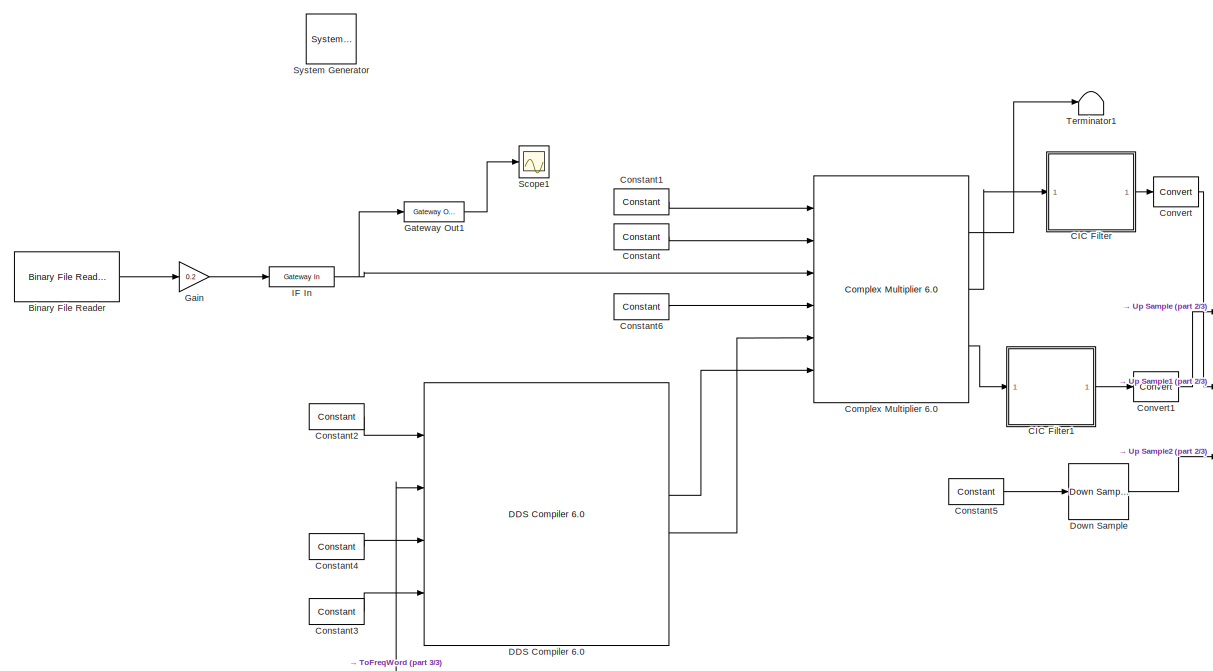
[diagram: root canvas - part 1/3, left side, full height]
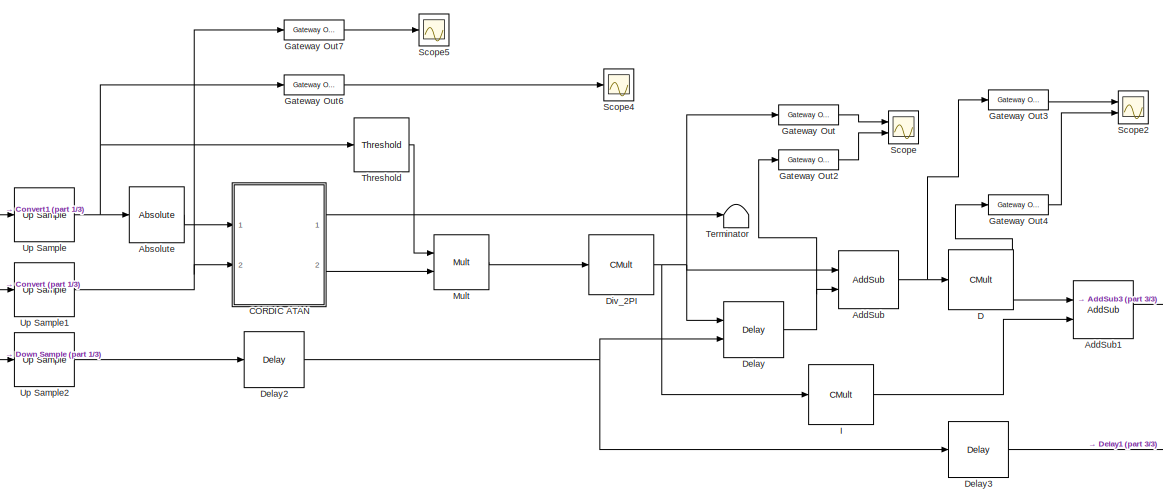
[diagram: root canvas - part 2/3, central region]
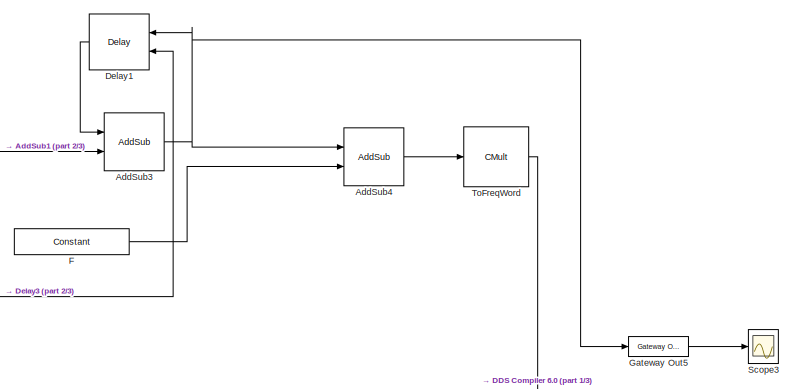
[diagram: root canvas - part 3/3, middle right region]
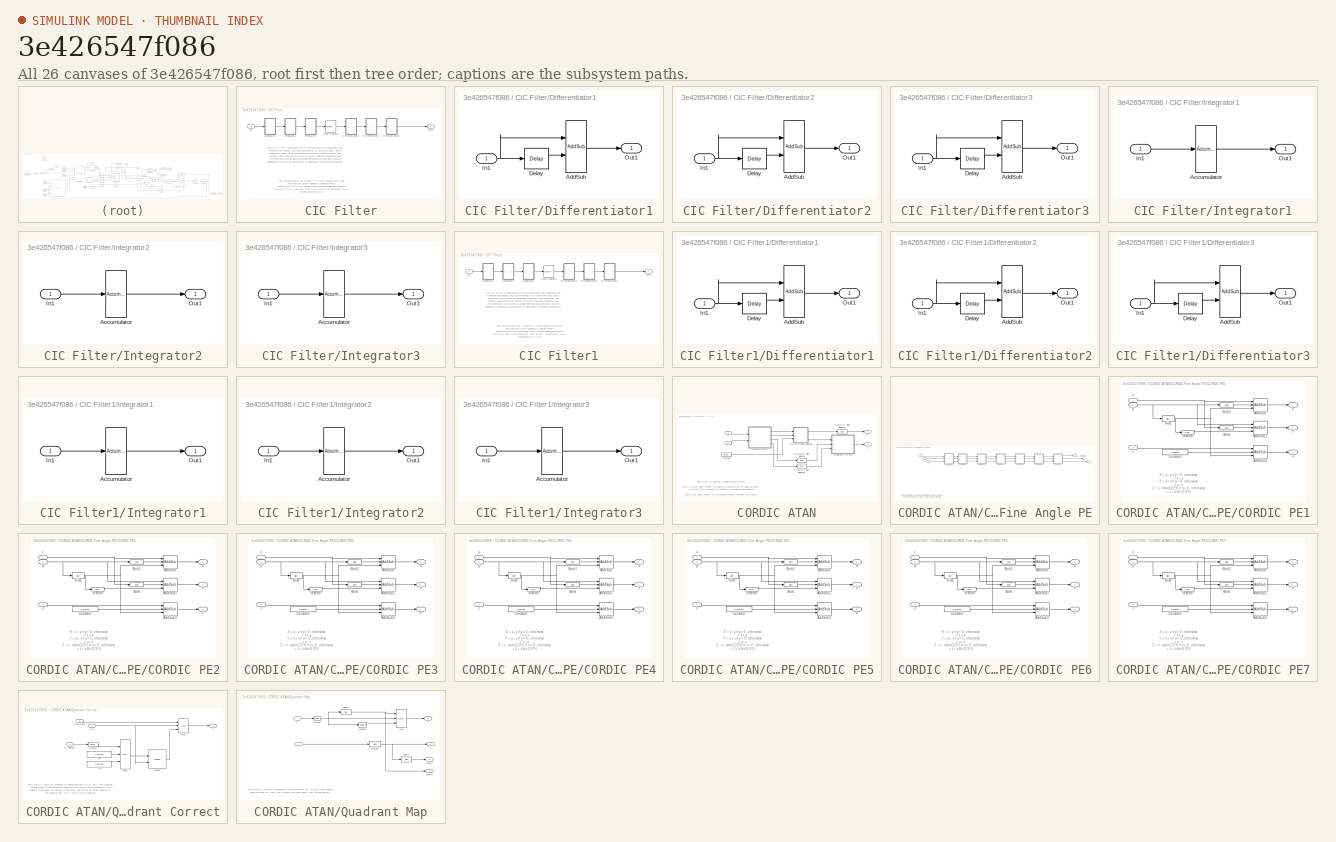
[diagram: thumbnail index - all 26 canvases of the model, root first then tree order]
MODEL slx_3e426547f086
KIND model
CONFIG AbsTol = auto
CONFIG EnableMultiTasking = off
CONFIG FixedStep = auto
CONFIG MaxStep = auto
CONFIG MinStep = auto
CONFIG RelTol = 1e-3
CONFIG SampleTimeConstraint = Unconstrained
CONFIG Solver = VariableStepAuto
CONFIG SolverName = VariableStepAuto
CONFIG StartTime = 0.0
CONFIG StopTime = 8*8e4/16367600
BLOCK [Reference]  System Generator  REF=xbsIndex_r4/ System Generator
  AttributesFormatString = System\nGenerator
  Ports = []
  SourceBlock = xbsIndex_r4/ System Generator
  SourceType = Xilinx System Generator Block
  Tag = genX
  UserDataPersistent = on
BLOCK [Reference] Absolute  REF=xbsIndex_r4/Absolute
  Ports = [1, 1]
  SourceBlock = xbsIndex_r4/Absolute
  SourceType = Xilinx Absolute Block Block
BLOCK [Reference] AddSub  REF=xbsIndex_r4/AddSub
  Ports = [2, 1]
  SourceBlock = xbsIndex_r4/AddSub
  SourceType = Xilinx Adder/Subtracter Block
BLOCK [Reference] AddSub1  REF=xbsIndex_r4/AddSub
  Ports = [2, 1]
  SourceBlock = xbsIndex_r4/AddSub
  SourceType = Xilinx Adder/Subtracter Block
BLOCK [Reference] AddSub3  REF=xbsIndex_r4/AddSub
  Ports = [2, 1]
  SourceBlock = xbsIndex_r4/AddSub
  SourceType = Xilinx Adder/Subtracter Block
BLOCK [Reference] AddSub4  REF=xbsIndex_r4/AddSub
  Ports = [2, 1]
  SourceBlock = xbsIndex_r4/AddSub
  SourceType = Xilinx Adder/Subtracter Block
BLOCK [Reference] Binary File Reader  REF=dspsrcs4/Binary File Reader
  Ports = [0, 1]
  SourceBlock = dspsrcs4/Binary File Reader
  SourceProductBaseCode = DS
  SourceProductName = DSP System Toolbox
  SourceType = dsp.simulink.BinaryFileReader
BLOCK [SubSystem] CIC Filter
  CopyFcn = set_param(gcb, 'MaskSelfModifiable', 'on', 'LinkStatus', 'none');
  Ports = [1, 1]
  RequestExecContextInheritance = off
BLOCK [SubSystem] CIC Filter/Differentiator1
  Ports = [1, 1]
  RequestExecContextInheritance = off
BLOCK [Reference] CIC Filter/Differentiator1/AddSub  REF=xbsIndex_r4/AddSub
  Ports = [2, 1]
  SourceBlock = xbsIndex_r4/AddSub
  SourceType = Xilinx Adder/Subtracter Block
BLOCK [Reference] CIC Filter/Differentiator1/Delay  REF=xbsIndex_r4/Delay
  Ports = [1, 1]
  SourceBlock = xbsIndex_r4/Delay
  SourceType = Xilinx Delay Block
BLOCK [Inport] CIC Filter/Differentiator1/In1
  IconDisplay = Port number
BLOCK [Outport] CIC Filter/Differentiator1/Out1
  IconDisplay = Port number
BLOCK [SubSystem] CIC Filter/Differentiator2
  Ports = [1, 1]
  RequestExecContextInheritance = off
BLOCK [Reference] CIC Filter/Differentiator2/AddSub  REF=xbsIndex_r4/AddSub
  Ports = [2, 1]
  SourceBlock = xbsIndex_r4/AddSub
  SourceType = Xilinx Adder/Subtracter Block
BLOCK [Reference] CIC Filter/Differentiator2/Delay  REF=xbsIndex_r4/Delay
  Ports = [1, 1]
  SourceBlock = xbsIndex_r4/Delay
  SourceType = Xilinx Delay Block
BLOCK [Inport] CIC Filter/Differentiator2/In1
  IconDisplay = Port number
BLOCK [Outport] CIC Filter/Differentiator2/Out1
  IconDisplay = Port number
BLOCK [SubSystem] CIC Filter/Differentiator3
  Ports = [1, 1]
  RequestExecContextInheritance = off
BLOCK [Reference] CIC Filter/Differentiator3/AddSub  REF=xbsIndex_r4/AddSub
  Ports = [2, 1]
  SourceBlock = xbsIndex_r4/AddSub
  SourceType = Xilinx Adder/Subtracter Block
BLOCK [Reference] CIC Filter/Differentiator3/Delay  REF=xbsIndex_r4/Delay
  Ports = [1, 1]
  SourceBlock = xbsIndex_r4/Delay
  SourceType = Xilinx Delay Block
BLOCK [Inport] CIC Filter/Differentiator3/In1
  IconDisplay = Port number
BLOCK [Outport] CIC Filter/Differentiator3/Out1
  IconDisplay = Port number
BLOCK [Reference] CIC Filter/Down Sample  REF=xbsIndex_r4/Down Sample
  Ports = [1, 1]
  SourceBlock = xbsIndex_r4/Down Sample
  SourceType = Xilinx Down Sampler Block
BLOCK [Inport] CIC Filter/In1
  IconDisplay = Port number
BLOCK [SubSystem] CIC Filter/Integrator1
  CopyFcn = set_param(gcb, 'LinkStatus', 'none');
  Ports = [1, 1]
  RequestExecContextInheritance = off
BLOCK [Reference] CIC Filter/Integrator1/Accumulator  REF=xbsIndex_r4/Accumulator
  Ports = [1, 1]
  SourceBlock = xbsIndex_r4/Accumulator
  SourceType = Xilinx Accumulator Block
BLOCK [Inport] CIC Filter/Integrator1/In1
  IconDisplay = Port number
BLOCK [Outport] CIC Filter/Integrator1/Out1
  IconDisplay = Port number
BLOCK [SubSystem] CIC Filter/Integrator2
  CopyFcn = set_param(gcb, 'LinkStatus', 'none');
  Ports = [1, 1]
  RequestExecContextInheritance = off
BLOCK [Reference] CIC Filter/Integrator2/Accumulator  REF=xbsIndex_r4/Accumulator
  Ports = [1, 1]
  SourceBlock = xbsIndex_r4/Accumulator
  SourceType = Xilinx Accumulator Block
BLOCK [Inport] CIC Filter/Integrator2/In1
  IconDisplay = Port number
BLOCK [Outport] CIC Filter/Integrator2/Out1
  IconDisplay = Port number
BLOCK [SubSystem] CIC Filter/Integrator3
  CopyFcn = set_param(gcb, 'LinkStatus', 'none');
  Ports = [1, 1]
  RequestExecContextInheritance = off
BLOCK [Reference] CIC Filter/Integrator3/Accumulator  REF=xbsIndex_r4/Accumulator
  Ports = [1, 1]
  SourceBlock = xbsIndex_r4/Accumulator
  SourceType = Xilinx Accumulator Block
BLOCK [Inport] CIC Filter/Integrator3/In1
  IconDisplay = Port number
BLOCK [Outport] CIC Filter/Integrator3/Out1
  IconDisplay = Port number
BLOCK [Outport] CIC Filter/Out1
  IconDisplay = Port number
BLOCK [SubSystem] CIC Filter1
  CopyFcn = set_param(gcb, 'MaskSelfModifiable', 'on', 'LinkStatus', 'none');
  Ports = [1, 1]
  RequestExecContextInheritance = off
BLOCK [SubSystem] CIC Filter1/Differentiator1
  Ports = [1, 1]
  RequestExecContextInheritance = off
BLOCK [Reference] CIC Filter1/Differentiator1/AddSub  REF=xbsIndex_r4/AddSub
  Ports = [2, 1]
  SourceBlock = xbsIndex_r4/AddSub
  SourceType = Xilinx Adder/Subtracter Block
BLOCK [Reference] CIC Filter1/Differentiator1/Delay  REF=xbsIndex_r4/Delay
  Ports = [1, 1]
  SourceBlock = xbsIndex_r4/Delay
  SourceType = Xilinx Delay Block
BLOCK [Inport] CIC Filter1/Differentiator1/In1
  IconDisplay = Port number
BLOCK [Outport] CIC Filter1/Differentiator1/Out1
  IconDisplay = Port number
BLOCK [SubSystem] CIC Filter1/Differentiator2
  Ports = [1, 1]
  RequestExecContextInheritance = off
BLOCK [Reference] CIC Filter1/Differentiator2/AddSub  REF=xbsIndex_r4/AddSub
  Ports = [2, 1]
  SourceBlock = xbsIndex_r4/AddSub
  SourceType = Xilinx Adder/Subtracter Block
BLOCK [Reference] CIC Filter1/Differentiator2/Delay  REF=xbsIndex_r4/Delay
  Ports = [1, 1]
  SourceBlock = xbsIndex_r4/Delay
  SourceType = Xilinx Delay Block
BLOCK [Inport] CIC Filter1/Differentiator2/In1
  IconDisplay = Port number
BLOCK [Outport] CIC Filter1/Differentiator2/Out1
  IconDisplay = Port number
BLOCK [SubSystem] CIC Filter1/Differentiator3
  Ports = [1, 1]
  RequestExecContextInheritance = off
BLOCK [Reference] CIC Filter1/Differentiator3/AddSub  REF=xbsIndex_r4/AddSub
  Ports = [2, 1]
  SourceBlock = xbsIndex_r4/AddSub
  SourceType = Xilinx Adder/Subtracter Block
BLOCK [Reference] CIC Filter1/Differentiator3/Delay  REF=xbsIndex_r4/Delay
  Ports = [1, 1]
  SourceBlock = xbsIndex_r4/Delay
  SourceType = Xilinx Delay Block
BLOCK [Inport] CIC Filter1/Differentiator3/In1
  IconDisplay = Port number
BLOCK [Outport] CIC Filter1/Differentiator3/Out1
  IconDisplay = Port number
BLOCK [Reference] CIC Filter1/Down Sample  REF=xbsIndex_r4/Down Sample
  Ports = [1, 1]
  SourceBlock = xbsIndex_r4/Down Sample
  SourceType = Xilinx Down Sampler Block
BLOCK [Inport] CIC Filter1/In1
  IconDisplay = Port number
BLOCK [SubSystem] CIC Filter1/Integrator1
  CopyFcn = set_param(gcb, 'LinkStatus', 'none');
  Ports = [1, 1]
  RequestExecContextInheritance = off
BLOCK [Reference] CIC Filter1/Integrator1/Accumulator  REF=xbsIndex_r4/Accumulator
  Ports = [1, 1]
  SourceBlock = xbsIndex_r4/Accumulator
  SourceType = Xilinx Accumulator Block
BLOCK [Inport] CIC Filter1/Integrator1/In1
  IconDisplay = Port number
BLOCK [Outport] CIC Filter1/Integrator1/Out1
  IconDisplay = Port number
BLOCK [SubSystem] CIC Filter1/Integrator2
  CopyFcn = set_param(gcb, 'LinkStatus', 'none');
  Ports = [1, 1]
  RequestExecContextInheritance = off
BLOCK [Reference] CIC Filter1/Integrator2/Accumulator  REF=xbsIndex_r4/Accumulator
  Ports = [1, 1]
  SourceBlock = xbsIndex_r4/Accumulator
  SourceType = Xilinx Accumulator Block
BLOCK [Inport] CIC Filter1/Integrator2/In1
  IconDisplay = Port number
BLOCK [Outport] CIC Filter1/Integrator2/Out1
  IconDisplay = Port number
BLOCK [SubSystem] CIC Filter1/Integrator3
  CopyFcn = set_param(gcb, 'LinkStatus', 'none');
  Ports = [1, 1]
  RequestExecContextInheritance = off
BLOCK [Reference] CIC Filter1/Integrator3/Accumulator  REF=xbsIndex_r4/Accumulator
  Ports = [1, 1]
  SourceBlock = xbsIndex_r4/Accumulator
  SourceType = Xilinx Accumulator Block
BLOCK [Inport] CIC Filter1/Integrator3/In1
  IconDisplay = Port number
BLOCK [Outport] CIC Filter1/Integrator3/Out1
  IconDisplay = Port number
BLOCK [Outport] CIC Filter1/Out1
  IconDisplay = Port number
BLOCK [SubSystem] CORDIC ATAN
  CopyFcn = set_param(gcb, 'MaskSelfModifiable', 'on', 'LinkStatus', 'none');
  Ports = [2, 2]
  RequestExecContextInheritance = off
BLOCK [SubSystem] CORDIC ATAN/CORDIC Fine Angle PE
  Ports = [3, 2]
  RequestExecContextInheritance = off
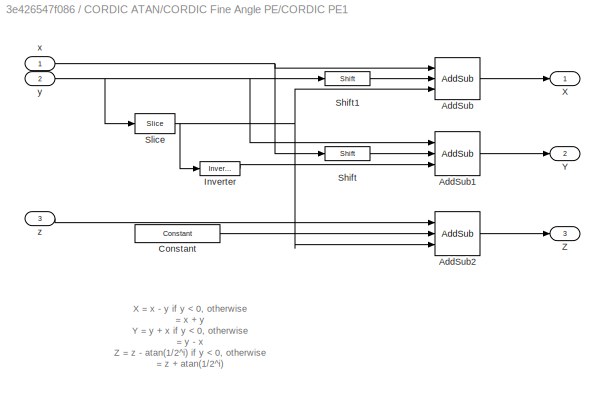
BLOCK [SubSystem] CORDIC ATAN/CORDIC Fine Angle PE/CORDIC PE1
  Ports = [3, 3]
  RequestExecContextInheritance = off
BLOCK [Reference] CORDIC ATAN/CORDIC Fine Angle PE/CORDIC PE1/AddSub  REF=xbsIndex_r4/AddSub
  Ports = [3, 1]
  SourceBlock = xbsIndex_r4/AddSub
  SourceType = Xilinx Adder/Subtracter Block
BLOCK [Reference] CORDIC ATAN/CORDIC Fine Angle PE/CORDIC PE1/AddSub1  REF=xbsIndex_r4/AddSub
  Ports = [3, 1]
  SourceBlock = xbsIndex_r4/AddSub
  SourceType = Xilinx Adder/Subtracter Block
BLOCK [Reference] CORDIC ATAN/CORDIC Fine Angle PE/CORDIC PE1/AddSub2  REF=xbsIndex_r4/AddSub
  Ports = [3, 1]
  SourceBlock = xbsIndex_r4/AddSub
  SourceType = Xilinx Adder/Subtracter Block
BLOCK [Reference] CORDIC ATAN/CORDIC Fine Angle PE/CORDIC PE1/Constant  REF=xbsIndex_r4/Constant
  Ports = [0, 1]
  SourceBlock = xbsIndex_r4/Constant
  SourceType = Xilinx Constant Block Block
BLOCK [Reference] CORDIC ATAN/CORDIC Fine Angle PE/CORDIC PE1/Inverter  REF=xbsIndex_r4/Inverter
  Ports = [1, 1]
  SourceBlock = xbsIndex_r4/Inverter
  SourceType = Xilinx Inverter Block
BLOCK [Reference] CORDIC ATAN/CORDIC Fine Angle PE/CORDIC PE1/Shift  REF=xbsIndex_r4/Shift
  Ports = [1, 1]
  SourceBlock = xbsIndex_r4/Shift
  SourceType = Xilinx Binary Shift Operator Block
BLOCK [Reference] CORDIC ATAN/CORDIC Fine Angle PE/CORDIC PE1/Shift1  REF=xbsIndex_r4/Shift
  Ports = [1, 1]
  SourceBlock = xbsIndex_r4/Shift
  SourceType = Xilinx Binary Shift Operator Block
BLOCK [Reference] CORDIC ATAN/CORDIC Fine Angle PE/CORDIC PE1/Slice  REF=xbsIndex_r4/Slice
  Ports = [1, 1]
  SourceBlock = xbsIndex_r4/Slice
  SourceType = Xilinx Bit Slice Extractor Block
BLOCK [Outport] CORDIC ATAN/CORDIC Fine Angle PE/CORDIC PE1/X
  IconDisplay = Port number
BLOCK [Outport] CORDIC ATAN/CORDIC Fine Angle PE/CORDIC PE1/Y
  IconDisplay = Port number
  Port = 2
BLOCK [Outport] CORDIC ATAN/CORDIC Fine Angle PE/CORDIC PE1/Z
  IconDisplay = Port number
  Port = 3
BLOCK [Inport] CORDIC ATAN/CORDIC Fine Angle PE/CORDIC PE1/x
  IconDisplay = Port number
BLOCK [Inport] CORDIC ATAN/CORDIC Fine Angle PE/CORDIC PE1/y
  IconDisplay = Port number
  Port = 2
BLOCK [Inport] CORDIC ATAN/CORDIC Fine Angle PE/CORDIC PE1/z
  IconDisplay = Port number
  Port = 3
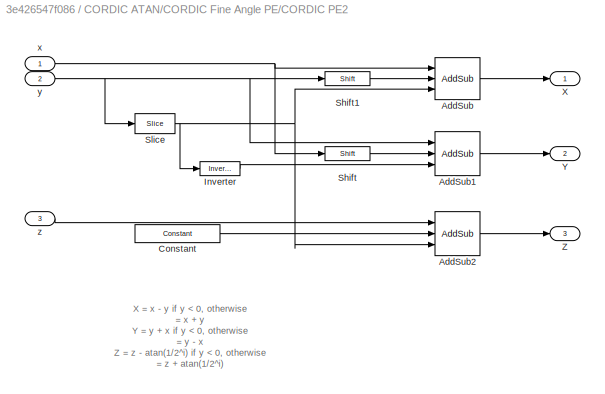
BLOCK [SubSystem] CORDIC ATAN/CORDIC Fine Angle PE/CORDIC PE2
  Ports = [3, 3]
  RequestExecContextInheritance = off
BLOCK [Reference] CORDIC ATAN/CORDIC Fine Angle PE/CORDIC PE2/AddSub  REF=xbsIndex_r4/AddSub
  Ports = [3, 1]
  SourceBlock = xbsIndex_r4/AddSub
  SourceType = Xilinx Adder/Subtracter Block
BLOCK [Reference] CORDIC ATAN/CORDIC Fine Angle PE/CORDIC PE2/AddSub1  REF=xbsIndex_r4/AddSub
  Ports = [3, 1]
  SourceBlock = xbsIndex_r4/AddSub
  SourceType = Xilinx Adder/Subtracter Block
BLOCK [Reference] CORDIC ATAN/CORDIC Fine Angle PE/CORDIC PE2/AddSub2  REF=xbsIndex_r4/AddSub
  Ports = [3, 1]
  SourceBlock = xbsIndex_r4/AddSub
  SourceType = Xilinx Adder/Subtracter Block
BLOCK [Reference] CORDIC ATAN/CORDIC Fine Angle PE/CORDIC PE2/Constant  REF=xbsIndex_r4/Constant
  Ports = [0, 1]
  SourceBlock = xbsIndex_r4/Constant
  SourceType = Xilinx Constant Block Block
BLOCK [Reference] CORDIC ATAN/CORDIC Fine Angle PE/CORDIC PE2/Inverter  REF=xbsIndex_r4/Inverter
  Ports = [1, 1]
  SourceBlock = xbsIndex_r4/Inverter
  SourceType = Xilinx Inverter Block
BLOCK [Reference] CORDIC ATAN/CORDIC Fine Angle PE/CORDIC PE2/Shift  REF=xbsIndex_r4/Shift
  Ports = [1, 1]
  SourceBlock = xbsIndex_r4/Shift
  SourceType = Xilinx Binary Shift Operator Block
BLOCK [Reference] CORDIC ATAN/CORDIC Fine Angle PE/CORDIC PE2/Shift1  REF=xbsIndex_r4/Shift
  Ports = [1, 1]
  SourceBlock = xbsIndex_r4/Shift
  SourceType = Xilinx Binary Shift Operator Block
BLOCK [Reference] CORDIC ATAN/CORDIC Fine Angle PE/CORDIC PE2/Slice  REF=xbsIndex_r4/Slice
  Ports = [1, 1]
  SourceBlock = xbsIndex_r4/Slice
  SourceType = Xilinx Bit Slice Extractor Block
BLOCK [Outport] CORDIC ATAN/CORDIC Fine Angle PE/CORDIC PE2/X
  IconDisplay = Port number
BLOCK [Outport] CORDIC ATAN/CORDIC Fine Angle PE/CORDIC PE2/Y
  IconDisplay = Port number
  Port = 2
BLOCK [Outport] CORDIC ATAN/CORDIC Fine Angle PE/CORDIC PE2/Z
  IconDisplay = Port number
  Port = 3
BLOCK [Inport] CORDIC ATAN/CORDIC Fine Angle PE/CORDIC PE2/x
  IconDisplay = Port number
BLOCK [Inport] CORDIC ATAN/CORDIC Fine Angle PE/CORDIC PE2/y
  IconDisplay = Port number
  Port = 2
BLOCK [Inport] CORDIC ATAN/CORDIC Fine Angle PE/CORDIC PE2/z
  IconDisplay = Port number
  Port = 3
BLOCK [SubSystem] CORDIC ATAN/CORDIC Fine Angle PE/CORDIC PE3
  Ports = [3, 3]
  RequestExecContextInheritance = off
BLOCK [Reference] CORDIC ATAN/CORDIC Fine Angle PE/CORDIC PE3/AddSub  REF=xbsIndex_r4/AddSub
  Ports = [3, 1]
  SourceBlock = xbsIndex_r4/AddSub
  SourceType = Xilinx Adder/Subtracter Block
BLOCK [Reference] CORDIC ATAN/CORDIC Fine Angle PE/CORDIC PE3/AddSub1  REF=xbsIndex_r4/AddSub
  Ports = [3, 1]
  SourceBlock = xbsIndex_r4/AddSub
  SourceType = Xilinx Adder/Subtracter Block
BLOCK [Reference] CORDIC ATAN/CORDIC Fine Angle PE/CORDIC PE3/AddSub2  REF=xbsIndex_r4/AddSub
  Ports = [3, 1]
  SourceBlock = xbsIndex_r4/AddSub
  SourceType = Xilinx Adder/Subtracter Block
BLOCK [Reference] CORDIC ATAN/CORDIC Fine Angle PE/CORDIC PE3/Constant  REF=xbsIndex_r4/Constant
  Ports = [0, 1]
  SourceBlock = xbsIndex_r4/Constant
  SourceType = Xilinx Constant Block Block
BLOCK [Reference] CORDIC ATAN/CORDIC Fine Angle PE/CORDIC PE3/Inverter  REF=xbsIndex_r4/Inverter
  Ports = [1, 1]
  SourceBlock = xbsIndex_r4/Inverter
  SourceType = Xilinx Inverter Block
BLOCK [Reference] CORDIC ATAN/CORDIC Fine Angle PE/CORDIC PE3/Shift  REF=xbsIndex_r4/Shift
  Ports = [1, 1]
  SourceBlock = xbsIndex_r4/Shift
  SourceType = Xilinx Binary Shift Operator Block
BLOCK [Reference] CORDIC ATAN/CORDIC Fine Angle PE/CORDIC PE3/Shift1  REF=xbsIndex_r4/Shift
  Ports = [1, 1]
  SourceBlock = xbsIndex_r4/Shift
  SourceType = Xilinx Binary Shift Operator Block
BLOCK [Reference] CORDIC ATAN/CORDIC Fine Angle PE/CORDIC PE3/Slice  REF=xbsIndex_r4/Slice
  Ports = [1, 1]
  SourceBlock = xbsIndex_r4/Slice
  SourceType = Xilinx Bit Slice Extractor Block
BLOCK [Outport] CORDIC ATAN/CORDIC Fine Angle PE/CORDIC PE3/X
  IconDisplay = Port number
BLOCK [Outport] CORDIC ATAN/CORDIC Fine Angle PE/CORDIC PE3/Y
  IconDisplay = Port number
  Port = 2
BLOCK [Outport] CORDIC ATAN/CORDIC Fine Angle PE/CORDIC PE3/Z
  IconDisplay = Port number
  Port = 3
BLOCK [Inport] CORDIC ATAN/CORDIC Fine Angle PE/CORDIC PE3/x
  IconDisplay = Port number
BLOCK [Inport] CORDIC ATAN/CORDIC Fine Angle PE/CORDIC PE3/y
  IconDisplay = Port number
  Port = 2
BLOCK [Inport] CORDIC ATAN/CORDIC Fine Angle PE/CORDIC PE3/z
  IconDisplay = Port number
  Port = 3
BLOCK [SubSystem] CORDIC ATAN/CORDIC Fine Angle PE/CORDIC PE4
  Ports = [3, 3]
  RequestExecContextInheritance = off
BLOCK [Reference] CORDIC ATAN/CORDIC Fine Angle PE/CORDIC PE4/AddSub  REF=xbsIndex_r4/AddSub
  Ports = [3, 1]
  SourceBlock = xbsIndex_r4/AddSub
  SourceType = Xilinx Adder/Subtracter Block
BLOCK [Reference] CORDIC ATAN/CORDIC Fine Angle PE/CORDIC PE4/AddSub1  REF=xbsIndex_r4/AddSub
  Ports = [3, 1]
  SourceBlock = xbsIndex_r4/AddSub
  SourceType = Xilinx Adder/Subtracter Block
BLOCK [Reference] CORDIC ATAN/CORDIC Fine Angle PE/CORDIC PE4/AddSub2  REF=xbsIndex_r4/AddSub
  Ports = [3, 1]
  SourceBlock = xbsIndex_r4/AddSub
  SourceType = Xilinx Adder/Subtracter Block
BLOCK [Reference] CORDIC ATAN/CORDIC Fine Angle PE/CORDIC PE4/Constant  REF=xbsIndex_r4/Constant
  Ports = [0, 1]
  SourceBlock = xbsIndex_r4/Constant
  SourceType = Xilinx Constant Block Block
BLOCK [Reference] CORDIC ATAN/CORDIC Fine Angle PE/CORDIC PE4/Inverter  REF=xbsIndex_r4/Inverter
  Ports = [1, 1]
  SourceBlock = xbsIndex_r4/Inverter
  SourceType = Xilinx Inverter Block
BLOCK [Reference] CORDIC ATAN/CORDIC Fine Angle PE/CORDIC PE4/Shift  REF=xbsIndex_r4/Shift
  Ports = [1, 1]
  SourceBlock = xbsIndex_r4/Shift
  SourceType = Xilinx Binary Shift Operator Block
BLOCK [Reference] CORDIC ATAN/CORDIC Fine Angle PE/CORDIC PE4/Shift1  REF=xbsIndex_r4/Shift
  Ports = [1, 1]
  SourceBlock = xbsIndex_r4/Shift
  SourceType = Xilinx Binary Shift Operator Block
BLOCK [Reference] CORDIC ATAN/CORDIC Fine Angle PE/CORDIC PE4/Slice  REF=xbsIndex_r4/Slice
  Ports = [1, 1]
  SourceBlock = xbsIndex_r4/Slice
  SourceType = Xilinx Bit Slice Extractor Block
BLOCK [Outport] CORDIC ATAN/CORDIC Fine Angle PE/CORDIC PE4/X
  IconDisplay = Port number
BLOCK [Outport] CORDIC ATAN/CORDIC Fine Angle PE/CORDIC PE4/Y
  IconDisplay = Port number
  Port = 2
BLOCK [Outport] CORDIC ATAN/CORDIC Fine Angle PE/CORDIC PE4/Z
  IconDisplay = Port number
  Port = 3
BLOCK [Inport] CORDIC ATAN/CORDIC Fine Angle PE/CORDIC PE4/x
  IconDisplay = Port number
BLOCK [Inport] CORDIC ATAN/CORDIC Fine Angle PE/CORDIC PE4/y
  IconDisplay = Port number
  Port = 2
BLOCK [Inport] CORDIC ATAN/CORDIC Fine Angle PE/CORDIC PE4/z
  IconDisplay = Port number
  Port = 3
BLOCK [SubSystem] CORDIC ATAN/CORDIC Fine Angle PE/CORDIC PE5
  Ports = [3, 3]
  RequestExecContextInheritance = off
BLOCK [Reference] CORDIC ATAN/CORDIC Fine Angle PE/CORDIC PE5/AddSub  REF=xbsIndex_r4/AddSub
  Ports = [3, 1]
  SourceBlock = xbsIndex_r4/AddSub
  SourceType = Xilinx Adder/Subtracter Block
BLOCK [Reference] CORDIC ATAN/CORDIC Fine Angle PE/CORDIC PE5/AddSub1  REF=xbsIndex_r4/AddSub
  Ports = [3, 1]
  SourceBlock = xbsIndex_r4/AddSub
  SourceType = Xilinx Adder/Subtracter Block
BLOCK [Reference] CORDIC ATAN/CORDIC Fine Angle PE/CORDIC PE5/AddSub2  REF=xbsIndex_r4/AddSub
  Ports = [3, 1]
  SourceBlock = xbsIndex_r4/AddSub
  SourceType = Xilinx Adder/Subtracter Block
BLOCK [Reference] CORDIC ATAN/CORDIC Fine Angle PE/CORDIC PE5/Constant  REF=xbsIndex_r4/Constant
  Ports = [0, 1]
  SourceBlock = xbsIndex_r4/Constant
  SourceType = Xilinx Constant Block Block
BLOCK [Reference] CORDIC ATAN/CORDIC Fine Angle PE/CORDIC PE5/Inverter  REF=xbsIndex_r4/Inverter
  Ports = [1, 1]
  SourceBlock = xbsIndex_r4/Inverter
  SourceType = Xilinx Inverter Block
BLOCK [Reference] CORDIC ATAN/CORDIC Fine Angle PE/CORDIC PE5/Shift  REF=xbsIndex_r4/Shift
  Ports = [1, 1]
  SourceBlock = xbsIndex_r4/Shift
  SourceType = Xilinx Binary Shift Operator Block
BLOCK [Reference] CORDIC ATAN/CORDIC Fine Angle PE/CORDIC PE5/Shift1  REF=xbsIndex_r4/Shift
  Ports = [1, 1]
  SourceBlock = xbsIndex_r4/Shift
  SourceType = Xilinx Binary Shift Operator Block
BLOCK [Reference] CORDIC ATAN/CORDIC Fine Angle PE/CORDIC PE5/Slice  REF=xbsIndex_r4/Slice
  Ports = [1, 1]
  SourceBlock = xbsIndex_r4/Slice
  SourceType = Xilinx Bit Slice Extractor Block
BLOCK [Outport] CORDIC ATAN/CORDIC Fine Angle PE/CORDIC PE5/X
  IconDisplay = Port number
BLOCK [Outport] CORDIC ATAN/CORDIC Fine Angle PE/CORDIC PE5/Y
  IconDisplay = Port number
  Port = 2
BLOCK [Outport] CORDIC ATAN/CORDIC Fine Angle PE/CORDIC PE5/Z
  IconDisplay = Port number
  Port = 3
BLOCK [Inport] CORDIC ATAN/CORDIC Fine Angle PE/CORDIC PE5/x
  IconDisplay = Port number
BLOCK [Inport] CORDIC ATAN/CORDIC Fine Angle PE/CORDIC PE5/y
  IconDisplay = Port number
  Port = 2
BLOCK [Inport] CORDIC ATAN/CORDIC Fine Angle PE/CORDIC PE5/z
  IconDisplay = Port number
  Port = 3
BLOCK [SubSystem] CORDIC ATAN/CORDIC Fine Angle PE/CORDIC PE6
  Ports = [3, 3]
  RequestExecContextInheritance = off
BLOCK [Reference] CORDIC ATAN/CORDIC Fine Angle PE/CORDIC PE6/AddSub  REF=xbsIndex_r4/AddSub
  Ports = [3, 1]
  SourceBlock = xbsIndex_r4/AddSub
  SourceType = Xilinx Adder/Subtracter Block
BLOCK [Reference] CORDIC ATAN/CORDIC Fine Angle PE/CORDIC PE6/AddSub1  REF=xbsIndex_r4/AddSub
  Ports = [3, 1]
  SourceBlock = xbsIndex_r4/AddSub
  SourceType = Xilinx Adder/Subtracter Block
BLOCK [Reference] CORDIC ATAN/CORDIC Fine Angle PE/CORDIC PE6/AddSub2  REF=xbsIndex_r4/AddSub
  Ports = [3, 1]
  SourceBlock = xbsIndex_r4/AddSub
  SourceType = Xilinx Adder/Subtracter Block
BLOCK [Reference] CORDIC ATAN/CORDIC Fine Angle PE/CORDIC PE6/Constant  REF=xbsIndex_r4/Constant
  Ports = [0, 1]
  SourceBlock = xbsIndex_r4/Constant
  SourceType = Xilinx Constant Block Block
BLOCK [Reference] CORDIC ATAN/CORDIC Fine Angle PE/CORDIC PE6/Inverter  REF=xbsIndex_r4/Inverter
  Ports = [1, 1]
  SourceBlock = xbsIndex_r4/Inverter
  SourceType = Xilinx Inverter Block
BLOCK [Reference] CORDIC ATAN/CORDIC Fine Angle PE/CORDIC PE6/Shift  REF=xbsIndex_r4/Shift
  Ports = [1, 1]
  SourceBlock = xbsIndex_r4/Shift
  SourceType = Xilinx Binary Shift Operator Block
BLOCK [Reference] CORDIC ATAN/CORDIC Fine Angle PE/CORDIC PE6/Shift1  REF=xbsIndex_r4/Shift
  Ports = [1, 1]
  SourceBlock = xbsIndex_r4/Shift
  SourceType = Xilinx Binary Shift Operator Block
BLOCK [Reference] CORDIC ATAN/CORDIC Fine Angle PE/CORDIC PE6/Slice  REF=xbsIndex_r4/Slice
  Ports = [1, 1]
  SourceBlock = xbsIndex_r4/Slice
  SourceType = Xilinx Bit Slice Extractor Block
BLOCK [Outport] CORDIC ATAN/CORDIC Fine Angle PE/CORDIC PE6/X
  IconDisplay = Port number
BLOCK [Outport] CORDIC ATAN/CORDIC Fine Angle PE/CORDIC PE6/Y
  IconDisplay = Port number
  Port = 2
BLOCK [Outport] CORDIC ATAN/CORDIC Fine Angle PE/CORDIC PE6/Z
  IconDisplay = Port number
  Port = 3
BLOCK [Inport] CORDIC ATAN/CORDIC Fine Angle PE/CORDIC PE6/x
  IconDisplay = Port number
BLOCK [Inport] CORDIC ATAN/CORDIC Fine Angle PE/CORDIC PE6/y
  IconDisplay = Port number
  Port = 2
BLOCK [Inport] CORDIC ATAN/CORDIC Fine Angle PE/CORDIC PE6/z
  IconDisplay = Port number
  Port = 3
BLOCK [SubSystem] CORDIC ATAN/CORDIC Fine Angle PE/CORDIC PE7
  Ports = [3, 3]
  RequestExecContextInheritance = off
BLOCK [Reference] CORDIC ATAN/CORDIC Fine Angle PE/CORDIC PE7/AddSub  REF=xbsIndex_r4/AddSub
  Ports = [3, 1]
  SourceBlock = xbsIndex_r4/AddSub
  SourceType = Xilinx Adder/Subtracter Block
BLOCK [Reference] CORDIC ATAN/CORDIC Fine Angle PE/CORDIC PE7/AddSub1  REF=xbsIndex_r4/AddSub
  Ports = [3, 1]
  SourceBlock = xbsIndex_r4/AddSub
  SourceType = Xilinx Adder/Subtracter Block
BLOCK [Reference] CORDIC ATAN/CORDIC Fine Angle PE/CORDIC PE7/AddSub2  REF=xbsIndex_r4/AddSub
  Ports = [3, 1]
  SourceBlock = xbsIndex_r4/AddSub
  SourceType = Xilinx Adder/Subtracter Block
BLOCK [Reference] CORDIC ATAN/CORDIC Fine Angle PE/CORDIC PE7/Constant  REF=xbsIndex_r4/Constant
  Ports = [0, 1]
  SourceBlock = xbsIndex_r4/Constant
  SourceType = Xilinx Constant Block Block
BLOCK [Reference] CORDIC ATAN/CORDIC Fine Angle PE/CORDIC PE7/Inverter  REF=xbsIndex_r4/Inverter
  Ports = [1, 1]
  SourceBlock = xbsIndex_r4/Inverter
  SourceType = Xilinx Inverter Block
BLOCK [Reference] CORDIC ATAN/CORDIC Fine Angle PE/CORDIC PE7/Shift  REF=xbsIndex_r4/Shift
  Ports = [1, 1]
  SourceBlock = xbsIndex_r4/Shift
  SourceType = Xilinx Binary Shift Operator Block
BLOCK [Reference] CORDIC ATAN/CORDIC Fine Angle PE/CORDIC PE7/Shift1  REF=xbsIndex_r4/Shift
  Ports = [1, 1]
  SourceBlock = xbsIndex_r4/Shift
  SourceType = Xilinx Binary Shift Operator Block
BLOCK [Reference] CORDIC ATAN/CORDIC Fine Angle PE/CORDIC PE7/Slice  REF=xbsIndex_r4/Slice
  Ports = [1, 1]
  SourceBlock = xbsIndex_r4/Slice
  SourceType = Xilinx Bit Slice Extractor Block
BLOCK [Outport] CORDIC ATAN/CORDIC Fine Angle PE/CORDIC PE7/X
  IconDisplay = Port number
BLOCK [Outport] CORDIC ATAN/CORDIC Fine Angle PE/CORDIC PE7/Y
  IconDisplay = Port number
  Port = 2
BLOCK [Outport] CORDIC ATAN/CORDIC Fine Angle PE/CORDIC PE7/Z
  IconDisplay = Port number
  Port = 3
BLOCK [Inport] CORDIC ATAN/CORDIC Fine Angle PE/CORDIC PE7/x
  IconDisplay = Port number
BLOCK [Inport] CORDIC ATAN/CORDIC Fine Angle PE/CORDIC PE7/y
  IconDisplay = Port number
  Port = 2
BLOCK [Inport] CORDIC ATAN/CORDIC Fine Angle PE/CORDIC PE7/z
  IconDisplay = Port number
  Port = 3
BLOCK [Terminator] CORDIC ATAN/CORDIC Fine Angle PE/Terminator
BLOCK [Outport] CORDIC ATAN/CORDIC Fine Angle PE/X
  IconDisplay = Port number
BLOCK [Outport] CORDIC ATAN/CORDIC Fine Angle PE/Z
  IconDisplay = Port number
  Port = 2
BLOCK [Inport] CORDIC ATAN/CORDIC Fine Angle PE/x
  IconDisplay = Port number
BLOCK [Inport] CORDIC ATAN/CORDIC Fine Angle PE/y
  IconDisplay = Port number
  Port = 2
BLOCK [Inport] CORDIC ATAN/CORDIC Fine Angle PE/z
  IconDisplay = Port number
  Port = 3
BLOCK [Reference] CORDIC ATAN/CORDIC Pipe Balance  REF=xbsIndex_r4/Delay
  Ports = [1, 1]
  SourceBlock = xbsIndex_r4/Delay
  SourceType = Xilinx Delay Block
BLOCK [Reference] CORDIC ATAN/CORDIC Pipe Balance1  REF=xbsIndex_r4/Delay
  Ports = [1, 1]
  SourceBlock = xbsIndex_r4/Delay
  SourceType = Xilinx Delay Block
BLOCK [Reference] CORDIC ATAN/CORDIC Pipe Balance2  REF=xbsIndex_r4/Delay
  Ports = [1, 1]
  SourceBlock = xbsIndex_r4/Delay
  SourceType = Xilinx Delay Block
BLOCK [Reference] CORDIC ATAN/Constant  REF=xbsIndex_r4/Constant
  Ports = [0, 1]
  SourceBlock = xbsIndex_r4/Constant
  SourceType = Xilinx Constant Block Block
BLOCK [SubSystem] CORDIC ATAN/Quadrant Correct
  Ports = [3, 1]
  RequestExecContextInheritance = off
BLOCK [Reference] CORDIC ATAN/Quadrant Correct/+PI  REF=xbsIndex_r4/Constant
  Ports = [0, 1]
  SourceBlock = xbsIndex_r4/Constant
  SourceType = Xilinx Constant Block Block
BLOCK [Reference] CORDIC ATAN/Quadrant Correct/-PI  REF=xbsIndex_r4/Constant
  Ports = [0, 1]
  SourceBlock = xbsIndex_r4/Constant
  SourceType = Xilinx Constant Block Block
BLOCK [Reference] CORDIC ATAN/Quadrant Correct/AddSub  REF=xbsIndex_r4/AddSub
  Ports = [2, 1]
  SourceBlock = xbsIndex_r4/AddSub
  SourceType = Xilinx Adder/Subtracter Block
BLOCK [Reference] CORDIC ATAN/Quadrant Correct/Convert  REF=xbsIndex_r4/Convert
  Ports = [1, 1]
  SourceBlock = xbsIndex_r4/Convert
  SourceType = Xilinx Type Converter Block
BLOCK [Reference] CORDIC ATAN/Quadrant Correct/Mux  REF=xbsIndex_r4/Mux
  Ports = [3, 1]
  SourceBlock = xbsIndex_r4/Mux
  SourceType = Xilinx Bus Multiplexer Block
BLOCK [Reference] CORDIC ATAN/Quadrant Correct/Mux1  REF=xbsIndex_r4/Mux
  Ports = [3, 1]
  SourceBlock = xbsIndex_r4/Mux
  SourceType = Xilinx Bus Multiplexer Block
BLOCK [Inport] CORDIC ATAN/Quadrant Correct/PI_ addsub
  IconDisplay = Port number
  Port = 2
BLOCK [Outport] CORDIC ATAN/Quadrant Correct/Z
  IconDisplay = Port number
BLOCK [Inport] CORDIC ATAN/Quadrant Correct/Z IN
  IconDisplay = Port number
BLOCK [Inport] CORDIC ATAN/Quadrant Correct/Z MUX SEL
  IconDisplay = Port number
  Port = 3
BLOCK [SubSystem] CORDIC ATAN/Quadrant Map
  Ports = [2, 4]
  RequestExecContextInheritance = off
BLOCK [Reference] CORDIC ATAN/Quadrant Map/Delay3  REF=xbsIndex_r4/Delay
  Ports = [1, 1]
  SourceBlock = xbsIndex_r4/Delay
  SourceType = Xilinx Delay Block
BLOCK [Reference] CORDIC ATAN/Quadrant Map/Delay4  REF=xbsIndex_r4/Delay
  Ports = [1, 1]
  SourceBlock = xbsIndex_r4/Delay
  SourceType = Xilinx Delay Block
BLOCK [Reference] CORDIC ATAN/Quadrant Map/Mux  REF=xbsIndex_r4/Mux
  Ports = [3, 1]
  SourceBlock = xbsIndex_r4/Mux
  SourceType = Xilinx Bus Multiplexer Block
BLOCK [Reference] CORDIC ATAN/Quadrant Map/Negate1  REF=xbsIndex_r4/Negate
  Ports = [1, 1]
  SourceBlock = xbsIndex_r4/Negate
  SourceType = Xilinx Negate Block Block
BLOCK [Outport] CORDIC ATAN/Quadrant Map/X
  IconDisplay = Port number
BLOCK [Outport] CORDIC ATAN/Quadrant Map/Y
  IconDisplay = Port number
  Port = 2
BLOCK [Reference] CORDIC ATAN/Quadrant Map/sgn(x)  REF=xbsIndex_r4/Slice
  Ports = [1, 1]
  SourceBlock = xbsIndex_r4/Slice
  SourceType = Xilinx Bit Slice Extractor Block
BLOCK [Reference] CORDIC ATAN/Quadrant Map/sgn(y)  REF=xbsIndex_r4/Slice
  Ports = [1, 1]
  SourceBlock = xbsIndex_r4/Slice
  SourceType = Xilinx Bit Slice Extractor Block
BLOCK [Outport] CORDIC ATAN/Quadrant Map/sign(x)
  IconDisplay = Port number
  Port = 4
BLOCK [Outport] CORDIC ATAN/Quadrant Map/sign(y)
  IconDisplay = Port number
  Port = 3
BLOCK [Inport] CORDIC ATAN/Quadrant Map/x
  IconDisplay = Port number
BLOCK [Inport] CORDIC ATAN/Quadrant Map/y
  IconDisplay = Port number
  Port = 2
BLOCK [Outport] CORDIC ATAN/X
  IconDisplay = Port number
BLOCK [Outport] CORDIC ATAN/Z
  IconDisplay = Port number
  Port = 2
BLOCK [Inport] CORDIC ATAN/x
  IconDisplay = Port number
BLOCK [Inport] CORDIC ATAN/y
  IconDisplay = Port number
  Port = 2
BLOCK [Reference] Complex Multiplier 6.0   REF=xbsIndex_r4/Complex Multiplier 6.0 
  Ports = [6, 3]
  SourceBlock = xbsIndex_r4/Complex Multiplier 6.0
  SourceType = Xilinx Complex Multiplier 6.0  Block
BLOCK [Reference] Constant  REF=xbsIndex_r4/Constant
  Ports = [0, 1]
  SourceBlock = xbsIndex_r4/Constant
  SourceType = Xilinx Constant Block Block
BLOCK [Reference] Constant1  REF=xbsIndex_r4/Constant
  Ports = [0, 1]
  SourceBlock = xbsIndex_r4/Constant
  SourceType = Xilinx Constant Block Block
BLOCK [Reference] Constant2  REF=xbsIndex_r4/Constant
  Ports = [0, 1]
  SourceBlock = xbsIndex_r4/Constant
  SourceType = Xilinx Constant Block Block
BLOCK [Reference] Constant3  REF=xbsIndex_r4/Constant
  Ports = [0, 1]
  SourceBlock = xbsIndex_r4/Constant
  SourceType = Xilinx Constant Block Block
BLOCK [Reference] Constant4  REF=xbsIndex_r4/Constant
  Ports = [0, 1]
  SourceBlock = xbsIndex_r4/Constant
  SourceType = Xilinx Constant Block Block
BLOCK [Reference] Constant5  REF=xbsIndex_r4/Constant
  Ports = [0, 1]
  SourceBlock = xbsIndex_r4/Constant
  SourceType = Xilinx Constant Block Block
BLOCK [Reference] Constant6  REF=xbsIndex_r4/Constant
  Ports = [0, 1]
  SourceBlock = xbsIndex_r4/Constant
  SourceType = Xilinx Constant Block Block
BLOCK [Reference] Convert  REF=xbsIndex_r4/Convert
  Ports = [1, 1]
  SourceBlock = xbsIndex_r4/Convert
  SourceType = Xilinx Type Converter Block
BLOCK [Reference] Convert1  REF=xbsIndex_r4/Convert
  Ports = [1, 1]
  SourceBlock = xbsIndex_r4/Convert
  SourceType = Xilinx Type Converter Block
BLOCK [Reference] D  REF=xbsIndex_r4/CMult
  Ports = [1, 1]
  SourceBlock = xbsIndex_r4/CMult
  SourceType = Xilinx Constant Multiplier Block
BLOCK [Reference] DDS Compiler 6.0   REF=xbsIndex_r4/DDS Compiler 6.0 
  Ports = [4, 6]
  SourceBlock = xbsIndex_r4/DDS Compiler 6.0
  SourceType = Xilinx DDS Compiler 6.0 Block
BLOCK [Reference] Delay  REF=xbsIndex_r4/Delay
  Ports = [2, 1]
  SourceBlock = xbsIndex_r4/Delay
  SourceType = Xilinx Delay Block
BLOCK [Reference] Delay1  REF=xbsIndex_r4/Delay
  Ports = [2, 1]
  SourceBlock = xbsIndex_r4/Delay
  SourceType = Xilinx Delay Block
BLOCK [Reference] Delay2  REF=xbsIndex_r4/Delay
  Ports = [1, 1]
  SourceBlock = xbsIndex_r4/Delay
  SourceType = Xilinx Delay Block
BLOCK [Reference] Delay3  REF=xbsIndex_r4/Delay
  Ports = [1, 1]
  SourceBlock = xbsIndex_r4/Delay
  SourceType = Xilinx Delay Block
BLOCK [Reference] Div_2PI  REF=xbsIndex_r4/CMult
  Ports = [1, 1]
  SourceBlock = xbsIndex_r4/CMult
  SourceType = Xilinx Constant Multiplier Block
BLOCK [Reference] Down Sample  REF=xbsIndex_r4/Down Sample
  Ports = [1, 1]
  SourceBlock = xbsIndex_r4/Down Sample
  SourceType = Xilinx Down Sampler Block
BLOCK [Reference] F  REF=xbsIndex_r4/Constant
  Ports = [0, 1]
  SourceBlock = xbsIndex_r4/Constant
  SourceType = Xilinx Constant Block Block
BLOCK [Gain] Gain
  Gain = 0.2
  OutDataTypeStr = Inherit: Inherit via internal rule
  ParamDataTypeStr = Inherit: Inherit via internal rule
  SaturateOnIntegerOverflow = off
BLOCK [Reference] Gateway Out  REF=xbsIndex_r4/Gateway Out
  Ports = [1, 1]
  SourceBlock = xbsIndex_r4/Gateway Out
  SourceType = Xilinx Gateway Out Block
BLOCK [Reference] Gateway Out1  REF=xbsIndex_r4/Gateway Out
  Ports = [1, 1]
  SourceBlock = xbsIndex_r4/Gateway Out
  SourceType = Xilinx Gateway Out Block
BLOCK [Reference] Gateway Out2  REF=xbsIndex_r4/Gateway Out
  Ports = [1, 1]
  SourceBlock = xbsIndex_r4/Gateway Out
  SourceType = Xilinx Gateway Out Block
BLOCK [Reference] Gateway Out3  REF=xbsIndex_r4/Gateway Out
  Ports = [1, 1]
  SourceBlock = xbsIndex_r4/Gateway Out
  SourceType = Xilinx Gateway Out Block
BLOCK [Reference] Gateway Out4  REF=xbsIndex_r4/Gateway Out
  Ports = [1, 1]
  SourceBlock = xbsIndex_r4/Gateway Out
  SourceType = Xilinx Gateway Out Block
BLOCK [Reference] Gateway Out5  REF=xbsIndex_r4/Gateway Out
  Ports = [1, 1]
  SourceBlock = xbsIndex_r4/Gateway Out
  SourceType = Xilinx Gateway Out Block
BLOCK [Reference] Gateway Out6  REF=xbsIndex_r4/Gateway Out
  Ports = [1, 1]
  SourceBlock = xbsIndex_r4/Gateway Out
  SourceType = Xilinx Gateway Out Block
BLOCK [Reference] Gateway Out7  REF=xbsIndex_r4/Gateway Out
  Ports = [1, 1]
  SourceBlock = xbsIndex_r4/Gateway Out
  SourceType = Xilinx Gateway Out Block
BLOCK [Reference] I  REF=xbsIndex_r4/CMult
  Ports = [1, 1]
  SourceBlock = xbsIndex_r4/CMult
  SourceType = Xilinx Constant Multiplier Block
BLOCK [Reference] IF In  REF=xbsIndex_r4/Gateway In
  Ports = [1, 1]
  SourceBlock = xbsIndex_r4/Gateway In
  SourceType = Xilinx Gateway In Block
BLOCK [Reference] Mult  REF=xbsIndex_r4/Mult
  Ports = [2, 1]
  SourceBlock = xbsIndex_r4/Mult
  SourceType = Xilinx Multiplier Block
BLOCK [Scope] Scope
  Floating = off
  NumInputPorts = 2
  Ports = [2]
  ScopeSpecificationString = Simulink.scopes.TimeScopeBlockCfg('CurrentConfiguration', extmgr.ConfigurationSet(extmgr.Configuration('Core','General UI',true),extmgr.Configuration('Core','Source UI',true),extmgr.Configuration('Sources','WiredSimulink',true),extmgr.Configuration('Visuals','Time Domain',true,'SerializedDisplays',{struct('MinYLimReal','-0.28274','MaxYLimReal','0.27793','YLabelReal','','MinYLimMag','0.00000','MaxY...<+1424ch>
BLOCK [Scope] Scope1
  Floating = off
  NumInputPorts = 1
  Ports = [1]
  ScopeSpecificationString = Simulink.scopes.TimeScopeBlockCfg('CurrentConfiguration', extmgr.ConfigurationSet(extmgr.Configuration('Core','General UI',true),extmgr.Configuration('Core','Source UI',true),extmgr.Configuration('Sources','WiredSimulink',true,'DataLoggingVariableName','ScopeData1'),extmgr.Configuration('Visuals','Time Domain',true,'PlotType','Stem','SerializedDisplays',{struct('MinYLimReal','-0.49805','MaxYLimRea...<+1466ch>
BLOCK [Scope] Scope2
  Floating = off
  NumInputPorts = 2
  Ports = [2]
  ScopeSpecificationString = Simulink.scopes.TimeScopeBlockCfg('CurrentConfiguration', extmgr.ConfigurationSet(extmgr.Configuration('Core','General UI',true),extmgr.Configuration('Core','Source UI',true),extmgr.Configuration('Sources','WiredSimulink',true,'DataLoggingVariableName','ScopeData2'),extmgr.Configuration('Visuals','Time Domain',true,'PlotType','Stem','SerializedDisplays',{struct('MinYLimReal','-155.20739','MaxYLimR...<+1443ch>
BLOCK [Scope] Scope3
  Floating = off
  NumInputPorts = 1
  Ports = [1]
  ScopeSpecificationString = Simulink.scopes.TimeScopeBlockCfg('CurrentConfiguration', extmgr.ConfigurationSet(extmgr.Configuration('Core','General UI',true),extmgr.Configuration('Core','Source UI',true),extmgr.Configuration('Sources','WiredSimulink',true,'DataLoggingVariableName','ScopeData3'),extmgr.Configuration('Visuals','Time Domain',true,'SerializedDisplays',{struct('MinYLimReal','-1042.65561','MaxYLimReal','1192.43872'...<+1469ch>
BLOCK [Scope] Scope4
  Floating = off
  NumInputPorts = 1
  Ports = [1]
  ScopeSpecificationString = Simulink.scopes.TimeScopeBlockCfg('CurrentConfiguration', extmgr.ConfigurationSet(extmgr.Configuration('Core','General UI',true),extmgr.Configuration('Core','Source UI',true),extmgr.Configuration('Sources','WiredSimulink',true,'DataLoggingVariableName','ScopeData1'),extmgr.Configuration('Visuals','Time Domain',true,'SerializedDisplays',{struct('MinYLimReal','-140.04882','MaxYLimReal','126.34786','...<+1742ch>
BLOCK [Scope] Scope5
  Floating = off
  NumInputPorts = 1
  Ports = [1]
  ScopeSpecificationString = Simulink.scopes.TimeScopeBlockCfg('CurrentConfiguration', extmgr.ConfigurationSet(extmgr.Configuration('Core','General UI',true),extmgr.Configuration('Core','Source UI',true),extmgr.Configuration('Sources','WiredSimulink',true,'DataLoggingVariableName','ScopeData2'),extmgr.Configuration('Visuals','Time Domain',true,'PlotType','Line','SerializedDisplays',{struct('MinYLimReal','-142.30526','MaxYLimR...<+1476ch>
BLOCK [Terminator] Terminator
BLOCK [Terminator] Terminator1
BLOCK [Reference] Threshold  REF=xbsIndex_r4/Threshold
  Ports = [1, 1]
  SourceBlock = xbsIndex_r4/Threshold
  SourceType = Xilinx Threshold Block
BLOCK [Reference] ToFreqWord  REF=xbsIndex_r4/CMult
  Ports = [1, 1]
  SourceBlock = xbsIndex_r4/CMult
  SourceType = Xilinx Constant Multiplier Block
BLOCK [Reference] Up Sample  REF=xbsIndex_r4/Up Sample
  Ports = [1, 1]
  SourceBlock = xbsIndex_r4/Up Sample
  SourceType = Xilinx Up Sampler Block
BLOCK [Reference] Up Sample1  REF=xbsIndex_r4/Up Sample
  Ports = [1, 1]
  SourceBlock = xbsIndex_r4/Up Sample
  SourceType = Xilinx Up Sampler Block
BLOCK [Reference] Up Sample2  REF=xbsIndex_r4/Up Sample
  Ports = [1, 1]
  SourceBlock = xbsIndex_r4/Up Sample
  SourceType = Xilinx Up Sampler Block
ANNOTATION CIC Filter: The CIC filter is constructed out of differentiators and integrators and a sample rate change. This block provides a full precision result and is dynamically built given the parameters entered in the dialog box. The dynamic rebuilding script can switch which side the integrators and differentiators are on and also change between an up and down sampler depending on whether an Interpolator or decima...<+118ch>
ANNOTATION CIC Filter: The Interpoiation by 48, 4 stage CIC filter occupies 116 slices. The maximum clock frequency is approximately 308.55 MHz in a Xilinx xc2vp2-7 part (Device speed data version: PRODUCTION 1.121 2005-11-04, ISE 8.1.01i I.25 software, VHDL synthesized with XST).
ANNOTATION CIC Filter1: The CIC filter is constructed out of differentiators and integrators and a sample rate change. This block provides a full precision result and is dynamically built given the parameters entered in the dialog box. The dynamic rebuilding script can switch which side the integrators and differentiators are on and also change between an up and down sampler depending on whether an Interpolator or decima...<+118ch>
ANNOTATION CIC Filter1: The Interpoiation by 48, 4 stage CIC filter occupies 116 slices. The maximum clock frequency is approximately 308.55 MHz in a Xilinx xc2vp2-7 part (Device speed data version: PRODUCTION 1.121 2005-11-04, ISE 8.1.01i I.25 software, VHDL synthesized with XST).
ANNOTATION CORDIC ATAN: The CORDIC algorithm is implemented in 3 steps. Step 1: Coarse Angle Rotation. The algorithm converges only for angles between -pi/2 and pi/2, so if x < zero, the input vector is reflected to the 1st or 3rd quadrant by making the x-coordinate non-negative. Step 2: Fine Angle Rotation. For rectangular-to-polar conversion, the resulting vector is rotated through progressively smaller angles, such th...<+316ch>
ANNOTATION CORDIC ATAN/CORDIC Fine Angle PE: The fine angle rotation operation is performed iteratively in stages (0..stages-1). The i-th PE rotates its input vector by an angle +/- atan(1/2^i), driving its input y coordinate towards zero.
ANNOTATION CORDIC ATAN/CORDIC Fine Angle PE/CORDIC PE1: X = x - y if y < 0, otherwise = x + y Y = y + x if y < 0, otherwise = y - x Z = z - atan(1/2^i) if y < 0, otherwise = z + atan(1/2^i)
ANNOTATION CORDIC ATAN/CORDIC Fine Angle PE/CORDIC PE2: X = x - y if y < 0, otherwise = x + y Y = y + x if y < 0, otherwise = y - x Z = z - atan(1/2^i) if y < 0, otherwise = z + atan(1/2^i)
ANNOTATION CORDIC ATAN/CORDIC Fine Angle PE/CORDIC PE3: X = x - y if y < 0, otherwise = x + y Y = y + x if y < 0, otherwise = y - x Z = z - atan(1/2^i) if y < 0, otherwise = z + atan(1/2^i)
ANNOTATION CORDIC ATAN/CORDIC Fine Angle PE/CORDIC PE4: X = x - y if y < 0, otherwise = x + y Y = y + x if y < 0, otherwise = y - x Z = z - atan(1/2^i) if y < 0, otherwise = z + atan(1/2^i)
ANNOTATION CORDIC ATAN/CORDIC Fine Angle PE/CORDIC PE5: X = x - y if y < 0, otherwise = x + y Y = y + x if y < 0, otherwise = y - x Z = z - atan(1/2^i) if y < 0, otherwise = z + atan(1/2^i)
ANNOTATION CORDIC ATAN/CORDIC Fine Angle PE/CORDIC PE6: X = x - y if y < 0, otherwise = x + y Y = y + x if y < 0, otherwise = y - x Z = z - atan(1/2^i) if y < 0, otherwise = z + atan(1/2^i)
ANNOTATION CORDIC ATAN/CORDIC Fine Angle PE/CORDIC PE7: X = x - y if y < 0, otherwise = x + y Y = y + x if y < 0, otherwise = y - x Z = z - atan(1/2^i) if y < 0, otherwise = z + atan(1/2^i)
ANNOTATION CORDIC ATAN/Quadrant Correct: The CORDIC algorithm coverges for angles between -pi/2 to +pi/2. The Quadrant Correct subsystem reflects the angle back to the 2nd and 3rd quadrant from the 1st and 4th quadarnt if reflection was applied during the quadarnt map stage. Reflection is applied by subtracting the output angle by pi if the original vector was in the 2nd quadrant and -p if it was in the 3rd quadrant.
ANNOTATION CORDIC ATAN/Quadrant Map: The CORDIC algorithm converges for angles between -pi/2 to +pi/2. The Quadrant Map subsystem always maps the absolute value for x-axis. This reflects the input vector from the 2nd and 3rd quadrant to the 1st and 4th quadrant, resp.
LINE Absolute:1 -> CORDIC ATAN:1
LINE AddSub1:1 -> AddSub3:2
NET AddSub3:1 -> AddSub4:1, Delay1:1, Gateway Out5:1
LINE AddSub4:1 -> ToFreqWord:1
NET AddSub:1 -> D:1, Gateway Out3:1
LINE Binary File Reader:1 -> Gain:1
LINE CIC Filter1:1 -> Convert1:1
LINE CIC Filter:1 -> Convert:1
LINE CORDIC ATAN:1 -> Terminator:1
LINE CORDIC ATAN:2 -> Mult:2
LINE Complex Multiplier 6.0 :1 -> Terminator1:1
LINE Complex Multiplier 6.0 :2 -> CIC Filter:1
LINE Complex Multiplier 6.0 :3 -> CIC Filter1:1
LINE Constant1:1 -> Complex Multiplier 6.0 :1
LINE Constant2:1 -> DDS Compiler 6.0 :1
LINE Constant3:1 -> DDS Compiler 6.0 :4
LINE Constant4:1 -> DDS Compiler 6.0 :3
LINE Constant5:1 -> Down Sample:1
LINE Constant6:1 -> Complex Multiplier 6.0 :4
LINE Constant:1 -> Complex Multiplier 6.0 :2
LINE Convert1:1 -> Up Sample:1
LINE Convert:1 -> Up Sample1:1
NET D:1 -> AddSub1:1, Gateway Out4:1
LINE DDS Compiler 6.0 :3 -> Complex Multiplier 6.0 :6
LINE DDS Compiler 6.0 :4 -> Complex Multiplier 6.0 :5
LINE Delay1:1 -> AddSub3:1
NET Delay2:1 -> Delay3:1, Delay:2
LINE Delay3:1 -> Delay1:2
NET Delay:1 -> AddSub:2, Gateway Out2:1
NET Div_2PI:1 -> AddSub:1, Delay:1, Gateway Out:1, I:1
LINE Down Sample:1 -> Up Sample2:1
LINE F:1 -> AddSub4:2
LINE Gain:1 -> IF In:1
LINE Gateway Out1:1 -> Scope1:1
LINE Gateway Out2:1 -> Scope:2
LINE Gateway Out3:1 -> Scope2:1
LINE Gateway Out4:1 -> Scope2:2
LINE Gateway Out5:1 -> Scope3:1
LINE Gateway Out6:1 -> Scope4:1
LINE Gateway Out7:1 -> Scope5:1
LINE Gateway Out:1 -> Scope:1
LINE I:1 -> AddSub1:2
NET IF In:1 -> Complex Multiplier 6.0 :3, Gateway Out1:1
LINE Mult:1 -> Div_2PI:1
LINE Threshold:1 -> Mult:1
LINE ToFreqWord:1 -> DDS Compiler 6.0 :2
NET Up Sample1:1 -> CORDIC ATAN:2, Gateway Out7:1
LINE Up Sample2:1 -> Delay2:1
NET Up Sample:1 -> Absolute:1, Gateway Out6:1, Threshold:1
note: NET lines group one-source signal fan-out (src -> all destinations, sorted); 1:1 wires keep LINE
